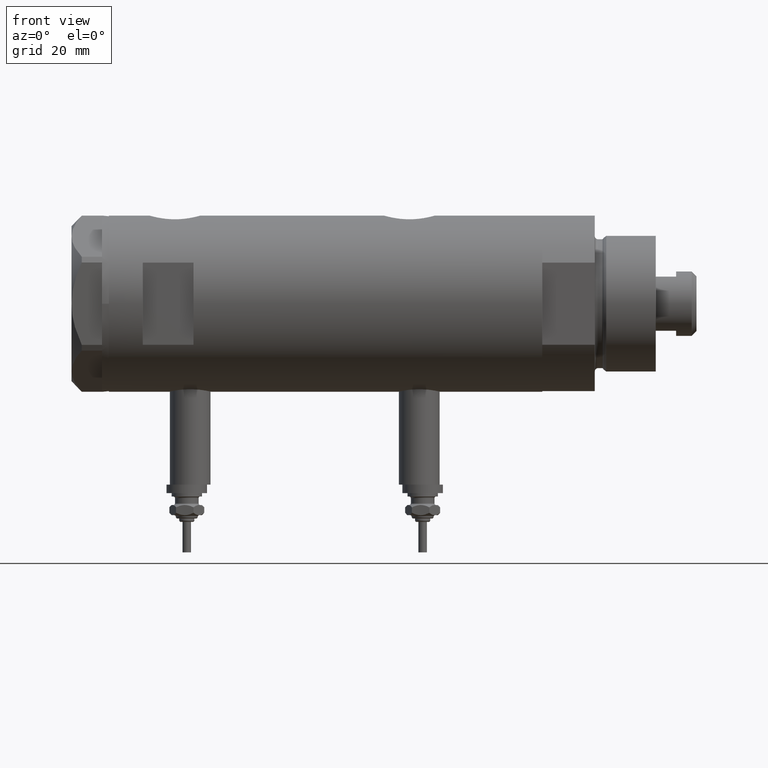
[diagram: clean part render]
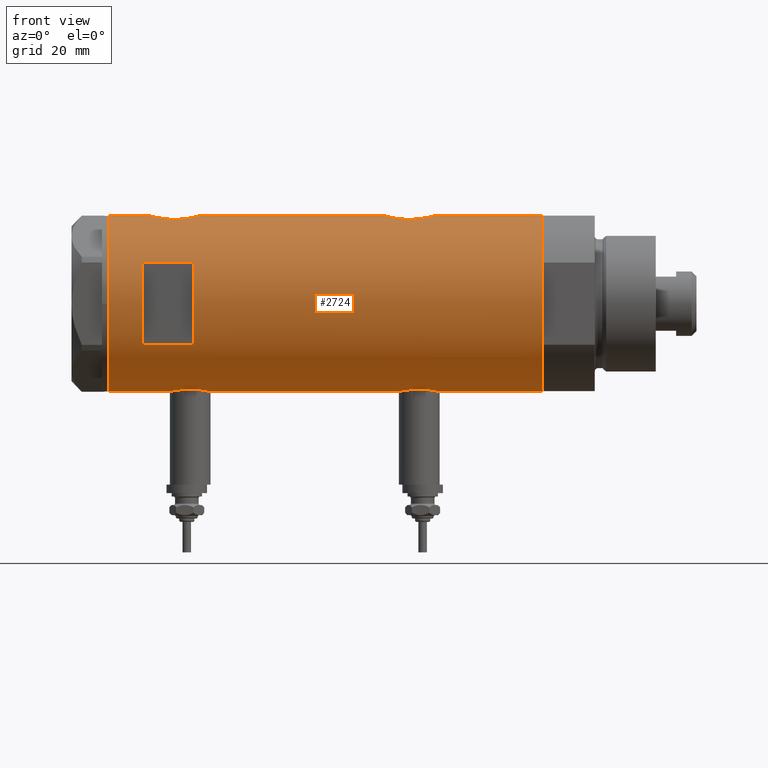
[diagram: same view with one face highlighted and labeled with its STEP entity id]
A machine part, front view. The second image highlights one B-rep face of the part: STEP entity #2724.
In plain terms, the highlighted cylindrical surface (partial cylindrical patch) has radius 26 mm, axis along (-1, -0, 0).
Its self-contained STEP definition (entity closure, byte-faithful):
#6 = CARTESIAN_POINT ( 'NONE',  ( 24.89475831528844552, -7.500067228253129770, 43.95662571746462532 ) ) ;
#11 = CARTESIAN_POINT ( 'NONE',  ( 25.72912156655465665, -3.765948295762493458, -31.25442975399221623 ) ) ;
#42 = CARTESIAN_POINT ( 'NONE',  ( 25.52567976009756379, -4.956266804246105551, 50.10019927459094191 ) ) ;
#134 = CARTESIAN_POINT ( 'NONE',  ( -25.59645788645698872, -4.565358797148519443, -23.37669470796522120 ) ) ;
#137 = CARTESIAN_POINT ( 'NONE',  ( 24.95200646071793571, -7.307522494171279526, 42.74392435812723079 ) ) ;
#138 = CARTESIAN_POINT ( 'NONE',  ( -25.67167563980648382, -4.129238867693851844, 35.24065943568895420 ) ) ;
#167 = CARTESIAN_POINT ( 'NONE',  ( -26.00000000000000355, -0.4086738135806045058, -33.90000000000001990 ) ) ;
#198 = CARTESIAN_POINT ( 'NONE',  ( -25.49846181844015192, -5.083495422175126066, -24.00822496617402635 ) ) ;
#257 = EDGE_CURVE ( 'NONE', #2544, #6095, #3784, .T. ) ;
#292 = DIRECTION ( 'NONE',  ( 0.000000000000000000, 0.000000000000000000, 1.000000000000000000 ) ) ;
#293 = B_SPLINE_CURVE_WITH_KNOTS ( 'NONE', 3,
 ( #2283, #893, #4735, #5158, #4213, #6153, #4771, #3329, #6220, #1798, #3273, #2230, #5734, #5289, #4642, #1376, #795, #5710, #402, #5194, #1352, #339, #6128, #861, #2343, #3714, #4297, #3245, #1826, #1770, #1883, #3804, #5770, #5649, #1287, #11, #1911, #2494, #2457, #3426, #2396, #4887 ),
 .UNSPECIFIED., .F., .F.,
 ( 4, 2, 2, 2, 2, 2, 2, 2, 2, 2, 2, 2, 2, 2, 2, 2, 2, 2, 2, 2, 4 ),
 ( 0.02357432247332886047, 0.02504731828495720264, 0.02652031409658554134, 0.02799330990821388351, 0.02946630571984222569, 0.03020280362565639504, 0.03093930153147056439, 0.03241229734309891003, 0.03388529315472725567, 0.03462179106054142502, 0.03535828896635559437, 0.03683128477798394695, 0.03756778268379813018, 0.03830428058961231341, 0.03977727640124066599, 0.04125027221286903245, 0.04198677011868321568, 0.04272326802449739891, 0.04419626383612575149, 0.04566925964775410407, 0.04714225545938246359 ),
 .UNSPECIFIED. ) ;
#317 = CARTESIAN_POINT ( 'NONE',  ( 26.00000000000000355, 0.000000000000000000, -63.95000000000000995 ) ) ;
#334 = ORIENTED_EDGE ( 'NONE', *, *, #3451, .F. ) ;
#339 = CARTESIAN_POINT ( 'NONE',  ( 24.89475831528845617, -7.500067228253131546, -25.24337428253536331 ) ) ;
#360 = CARTESIAN_POINT ( 'NONE',  ( -25.71926338401908652, -3.813768894920905872, 44.90572139833817289 ) ) ;
#392 = CARTESIAN_POINT ( 'NONE',  ( -25.28632996747171902, -6.050474653715411932, 41.56911870841535972 ) ) ;
#401 = CARTESIAN_POINT ( 'NONE',  ( 0.000000000000000000, 0.000000000000000000, -63.95000000000000995 ) ) ;
#402 = CARTESIAN_POINT ( 'NONE',  ( 24.91324908721446008, -7.438459228814659596, -23.75982500625810445 ) ) ;
#414 = CARTESIAN_POINT ( 'NONE',  ( -25.28680988956730857, -6.048472998962280300, 38.32372305811758650 ) ) ;
#426 = DIRECTION ( 'NONE',  ( 1.000000000000000000, 0.000000000000000000, 0.000000000000000000 ) ) ;
#435 = CARTESIAN_POINT ( 'NONE',  ( -12.12435565298214080, -23.00000000000000355, 53.94999999999999574 ) ) ;
#443 = VECTOR ( 'NONE', #999, 1000.000000000000000 ) ;
#523 = CARTESIAN_POINT ( 'NONE',  ( 25.00829008792691965, -7.115081037226468119, 46.87301003740818572 ) ) ;
#555 = CARTESIAN_POINT ( 'NONE',  ( 25.93098857934040424, -1.953835360821270184, 37.19226335297439334 ) ) ;
#573 = ORIENTED_EDGE ( 'NONE', *, *, #4363, .F. ) ;
#583 = CARTESIAN_POINT ( 'NONE',  ( -25.23758491649666169, -6.250144606721703688, -27.23988300428193554 ) ) ;
#585 = CARTESIAN_POINT ( 'NONE',  ( 25.59665538672497576, -4.580438224580679396, 50.40889127712392082 ) ) ;
#617 = CARTESIAN_POINT ( 'NONE',  ( -25.25025691038242215, -6.198787452305309920, -28.47441165395796503 ) ) ;
#622 = CARTESIAN_POINT ( 'NONE',  ( -25.87202607293666645, -2.583404329177992675, 34.25526333145487712 ) ) ;
#648 = DIRECTION ( 'NONE',  ( 0.000000000000000000, 0.000000000000000000, 1.000000000000000000 ) ) ;
#655 = CARTESIAN_POINT ( 'NONE',  ( -26.00000000000000355, 9.891741702313250758E-16, -21.40000000000000568 ) ) ;
#660 = CARTESIAN_POINT ( 'NONE',  ( -25.38744165544137132, -5.612847683295914436, 37.17012416761524918 ) ) ;
#691 = CARTESIAN_POINT ( 'NONE',  ( -25.64593536028935716, -4.278686337618962554, -23.08968397039123133 ) ) ;
#726 = CARTESIAN_POINT ( 'NONE',  ( -26.00000000000000355, 3.184077527325983904E-15, -33.90000000000001279 ) ) ;
#793 = VECTOR ( 'NONE', #5399, 1000.000000000000000 ) ;
#795 = CARTESIAN_POINT ( 'NONE',  ( 24.96672817551788270, -7.257586026187391681, -22.79615800278702409 ) ) ;
#838 = VERTEX_POINT ( 'NONE', #5767 ) ;
#846 = CARTESIAN_POINT ( 'NONE',  ( -25.59645788645698872, -4.565358797148513226, 44.22330529203480864 ) ) ;
#861 = CARTESIAN_POINT ( 'NONE',  ( 24.95200646071793926, -7.307522494171277749, -26.45607564187278982 ) ) ;
#877 = CARTESIAN_POINT ( 'NONE',  ( -25.74330903162726614, -3.648508829439214285, 45.02867714715799252 ) ) ;
#893 = CARTESIAN_POINT ( 'NONE',  ( 26.00000000000000355, -0.4910237949823167969, -17.25000000000000355 ) ) ;
#979 = CARTESIAN_POINT ( 'NONE',  ( 25.27534302296962565, -6.097250460344749712, 48.82409613097076573 ) ) ;
#999 = DIRECTION ( 'NONE',  ( 0.000000000000000000, 0.000000000000000000, 1.000000000000000000 ) ) ;
#1013 = CARTESIAN_POINT ( 'NONE',  ( 25.93085545515512180, -1.956676574435509686, 51.70727036830268020 ) ) ;
#1014 = CARTESIAN_POINT ( 'NONE',  ( -25.78943824387524231, -3.306687742228910487, 34.64245861216535616 ) ) ;
#1035 = VERTEX_POINT ( 'NONE', #4386 ) ;
#1046 = EDGE_CURVE ( 'NONE', #4701, #4359, #1752, .T. ) ;
#1070 = CARTESIAN_POINT ( 'NONE',  ( -25.52274351135604036, -4.960534548086201312, -23.84248254659267374 ) ) ;
#1073 = CARTESIAN_POINT ( 'NONE',  ( 24.89854802586676286, -7.487520416261735257, 44.94815683577904508 ) ) ;
#1077 = ORIENTED_EDGE ( 'NONE', *, *, #6127, .F. ) ;
#1091 = ORIENTED_EDGE ( 'NONE', *, *, #3012, .F. ) ;
#1103 = CARTESIAN_POINT ( 'NONE',  ( -25.24022290516699485, -6.239518219915428432, -28.06597215938432655 ) ) ;
#1106 = CARTESIAN_POINT ( 'NONE',  ( 25.78993643992928853, -3.329561377902404029, 51.18821560278738048 ) ) ;
#1140 = CARTESIAN_POINT ( 'NONE',  ( 26.00000000000001066, -0.4982617809740571002, 36.95000000000000995 ) ) ;
#1178 = CARTESIAN_POINT ( 'NONE',  ( -25.95218276861526618, -1.627663810194431626, -33.69850980387604267 ) ) ;
#1211 = CARTESIAN_POINT ( 'NONE',  ( -25.52190669608696183, -4.968444991210423822, -31.46341092192486855 ) ) ;
#1243 = CARTESIAN_POINT ( 'NONE',  ( -26.00000000000000355, 9.891741702313250758E-16, -21.40000000000000568 ) ) ;
#1259 = CARTESIAN_POINT ( 'NONE',  ( -26.00000000000000355, 3.184081677783118585E-15, 63.95000000000000995 ) ) ;
#1287 = CARTESIAN_POINT ( 'NONE',  ( 25.62983961939740496, -4.376509667782456425, -30.84558499042960378 ) ) ;
#1352 = CARTESIAN_POINT ( 'NONE',  ( 24.89478872726946079, -7.499966281647700406, -24.50178149365219227 ) ) ;
#1361 = CARTESIAN_POINT ( 'NONE',  ( 0.000000000000000000, 0.000000000000000000, -63.95000000000000995 ) ) ;
#1376 = CARTESIAN_POINT ( 'NONE',  ( 25.00829008792691965, -7.115081037226463678, -22.32698996259181001 ) ) ;
#1392 = VECTOR ( 'NONE', #292, 1000.000000000000000 ) ;
#1493 = CARTESIAN_POINT ( 'NONE',  ( 25.98599366666249466, -0.9828433289544075135, 51.90188401723472822 ) ) ;
#1509 = LINE ( 'NONE', #3445, #1986 ) ;
#1522 = CIRCLE ( 'NONE', #5682, 26.00000000000000355 ) ;
#1525 = CARTESIAN_POINT ( 'NONE',  ( 25.48871066912672489, -5.133852125086502127, 38.97709693256022945 ) ) ;
#1548 = CARTESIAN_POINT ( 'NONE',  ( -25.24765475072629783, -6.209883762780005867, -26.83321815644901065 ) ) ;
#1579 = EDGE_CURVE ( 'NONE', #6095, #2695, #1509, .T. ) ;
#1586 = VECTOR ( 'NONE', #648, 1000.000000000000000 ) ;
#1588 = CARTESIAN_POINT ( 'NONE',  ( 25.11342038069227200, -6.734617143597205313, 47.78770695790494472 ) ) ;
#1627 = CARTESIAN_POINT ( 'NONE',  ( 25.72873412774685775, -3.768477344985551536, 50.95287460144461988 ) ) ;
#1658 = CARTESIAN_POINT ( 'NONE',  ( -25.95206678899177533, -1.628763264760259677, -21.60199186669786542 ) ) ;
#1678 = EDGE_CURVE ( 'NONE', #3145, #1035, #4903, .T. ) ;
#1716 = DIRECTION ( 'NONE',  ( 0.000000000000000000, 0.000000000000000000, 1.000000000000000000 ) ) ;
#1752 = B_SPLINE_CURVE_WITH_KNOTS ( 'NONE', 3,
 ( #4857, #3422, #5916, #3029, #2454, #622, #2556, #5378, #1014, #4512, #138, #1972, #3897, #5857, #660, #4692, #414, #6300, #3702, #2836, #1816, #4759, #5700, #392, #3262, #3767, #5214, #2333, #6263, #1900, #846, #2772, #4724, #360, #877, #2303, #4260, #6209, #6235, #5242, #1842, #5724 ),
 .UNSPECIFIED., .F., .F.,
 ( 4, 2, 2, 2, 2, 2, 2, 2, 2, 2, 2, 2, 2, 2, 2, 2, 2, 2, 2, 2, 4 ),
 ( 0.01961238453869442941, 0.02083783025472767114, 0.02206327597076090941, 0.02267599882877753201, 0.02328872168679415461, 0.02451416740282739287, 0.02573961311886063114, 0.02696505883489386940, 0.02819050455092710766, 0.02880322740894371986, 0.02941595026696032858, 0.03064139598299354950, 0.03186684169902676694, 0.03309228741505998439, 0.03370501027307658271, 0.03431773313109318796, 0.03493045598910978627, 0.03554317884712639153, 0.03676862456315960898, 0.03799407027919282642, 0.03921951599522604387 ),
 .UNSPECIFIED. ) ;
#1770 = CARTESIAN_POINT ( 'NONE',  ( 25.30930190055639883, -5.959775463244125326, -29.32974043478030168 ) ) ;
#1798 = CARTESIAN_POINT ( 'NONE',  ( 25.41756773306324035, -5.475260495868973010, -19.61859126343050974 ) ) ;
#1816 = CARTESIAN_POINT ( 'NONE',  ( -25.23763877699556701, -6.249927116972441965, 39.74164472334533116 ) ) ;
#1826 = CARTESIAN_POINT ( 'NONE',  ( 25.17393786935996047, -6.507882790539420093, -28.51037333344033442 ) ) ;
#1842 = CARTESIAN_POINT ( 'NONE',  ( -25.99999999999998934, -0.4144764235405755670, 46.19999999999998863 ) ) ;
#1844 = DIRECTION ( 'NONE',  ( 0.000000000000000000, 0.000000000000000000, 1.000000000000000000 ) ) ;
#1883 = CARTESIAN_POINT ( 'NONE',  ( 25.38125492692911322, -5.649348210287286953, -29.70694334346396204 ) ) ;
#1896 = AXIS2_PLACEMENT_3D ( 'NONE', #1361, #5754, #3786 ) ;
#1900 = CARTESIAN_POINT ( 'NONE',  ( -25.57167894663061958, -4.701762988462087733, 44.07280450192416765 ) ) ;
#1911 = CARTESIAN_POINT ( 'NONE',  ( 25.78902964777116225, -3.336582972512953660, -31.48475840457738073 ) ) ;
#1956 = EDGE_CURVE ( 'NONE', #4811, #4112, #2792, .T. ) ;
#1971 = CARTESIAN_POINT ( 'NONE',  ( 24.89478872726946435, -7.499966281647702182, 44.69821850634780702 ) ) ;
#1972 = CARTESIAN_POINT ( 'NONE',  ( -25.57228991600092627, -4.705691472451699831, 35.81660309875347536 ) ) ;
#1976 = VERTEX_POINT ( 'NONE', #1259 ) ;
#1986 = VECTOR ( 'NONE', #5397, 1000.000000000000000 ) ;
#1997 = CARTESIAN_POINT ( 'NONE',  ( 25.11243836838846732, -6.738202653785822172, 41.12043350844842848 ) ) ;
#2031 = CARTESIAN_POINT ( 'NONE',  ( -25.57167894663062313, -4.701762988462092174, -23.52719549807583022 ) ) ;
#2060 = CARTESIAN_POINT ( 'NONE',  ( -25.87202607293667000, -2.583404329177994008, -33.34473666854514562 ) ) ;
#2062 = CARTESIAN_POINT ( 'NONE',  ( 25.31004928890825312, -5.952041021437453949, 49.01980599883506073 ) ) ;
#2088 = CARTESIAN_POINT ( 'NONE',  ( 12.12435565298214080, -23.00000000000000355, 53.94999999999999574 ) ) ;
#2091 = CARTESIAN_POINT ( 'NONE',  ( -25.99009752186833566, -0.8230863847107473541, -21.44082928593318016 ) ) ;
#2094 = CARTESIAN_POINT ( 'NONE',  ( 24.96970063328116751, -7.247045583599692975, 42.50280785145199758 ) ) ;
#2108 = ORIENTED_EDGE ( 'NONE', *, *, #1956, .T. ) ;
#2118 = CARTESIAN_POINT ( 'NONE',  ( -25.92425332714051223, -2.018894156999441858, -33.57896120675329854 ) ) ;
#2148 = CARTESIAN_POINT ( 'NONE',  ( -25.25769689814630325, -6.168504065326071206, -28.67646635296746283 ) ) ;
#2186 = ORIENTED_EDGE ( 'NONE', *, *, #4754, .F. ) ;
#2230 = CARTESIAN_POINT ( 'NONE',  ( 25.31004928890824957, -5.952041021437452173, -20.18019400116494211 ) ) ;
#2283 = CARTESIAN_POINT ( 'NONE',  ( 26.00000000000000355, -3.975025925197986111E-20, -17.25000000000000000 ) ) ;
#2301 = CARTESIAN_POINT ( 'NONE',  ( 26.00000000000000355, -3.975025925197986111E-20, 51.95000000000000284 ) ) ;
#2302 = DIRECTION ( 'NONE',  ( 1.000000000000000000, 0.000000000000000000, 0.000000000000000000 ) ) ;
#2303 = CARTESIAN_POINT ( 'NONE',  ( -25.81232680456767170, -3.137210741985118290, 45.37113657221578933 ) ) ;
#2333 = CARTESIAN_POINT ( 'NONE',  ( -25.49846181844015192, -5.083495422175122513, 43.59177503382596797 ) ) ;
#2343 = CARTESIAN_POINT ( 'NONE',  ( 24.96970063328116751, -7.247045583599691199, -26.69719214854802658 ) ) ;
#2384 = CIRCLE ( 'NONE', #3105, 26.00000000000000355 ) ;
#2396 = CARTESIAN_POINT ( 'NONE',  ( 26.00000000000000000, -0.4982617809740598758, -32.24999999999999289 ) ) ;
#2431 = VERTEX_POINT ( 'NONE', #2864 ) ;
#2452 = CARTESIAN_POINT ( 'NONE',  ( 25.03461301890608581, -7.019803056070501590, 41.79816816893102072 ) ) ;
#2454 = CARTESIAN_POINT ( 'NONE',  ( -25.92425332714050867, -2.018894156999440526, 34.02103879324670999 ) ) ;
#2457 = CARTESIAN_POINT ( 'NONE',  ( 25.93098857934040780, -1.953835360821264411, -32.00773664702560950 ) ) ;
#2490 = CARTESIAN_POINT ( 'NONE',  ( 25.62983961939739785, -4.376509667782453761, 38.35441500957040262 ) ) ;
#2494 = CARTESIAN_POINT ( 'NONE',  ( 25.88994451797512042, -2.432613607265603495, -31.86140968713203137 ) ) ;
#2515 = ORIENTED_EDGE ( 'NONE', *, *, #4379, .F. ) ;
#2523 = CARTESIAN_POINT ( 'NONE',  ( -25.28632996747171546, -6.050474653715413709, -26.03088129158463815 ) ) ;
#2524 = CARTESIAN_POINT ( 'NONE',  ( 24.92415241886515176, -7.401968919186680651, 45.68323537444814519 ) ) ;
#2544 = VERTEX_POINT ( 'NONE', #2088 ) ;
#2553 = CARTESIAN_POINT ( 'NONE',  ( -25.92364458890659762, -2.026637113504535570, -21.72369009308525278 ) ) ;
#2554 = EDGE_CURVE ( 'NONE', #6316, #4844, #3125, .T. ) ;
#2556 = CARTESIAN_POINT ( 'NONE',  ( -25.85288666140180780, -2.767917424206675747, 34.34257790010329359 ) ) ;
#2576 = ORIENTED_EDGE ( 'NONE', *, *, #1046, .F. ) ;
#2638 = VERTEX_POINT ( 'NONE', #1243 ) ;
#2695 = VERTEX_POINT ( 'NONE', #3819 ) ;
#2709 = CYLINDRICAL_SURFACE ( 'NONE', #1896, 26.00000000000000355 ) ;
#2716 = AXIS2_PLACEMENT_3D ( 'NONE', #5489, #3149, #5257 ) ;
#2724 = ADVANCED_FACE ( 'NONE', ( #3730, #4309 ), #2709, .T. ) ;
#2754 = EDGE_CURVE ( 'NONE', #2431, #838, #5782, .T. ) ;
#2772 = CARTESIAN_POINT ( 'NONE',  ( -25.64593536028936782, -4.278686337618957225, 44.51031602960880207 ) ) ;
#2792 = LINE ( 'NONE', #317, #5031 ) ;
#2814 = ORIENTED_EDGE ( 'NONE', *, *, #5197, .F. ) ;
#2836 = CARTESIAN_POINT ( 'NONE',  ( -25.24022290516698419, -6.239518219915426656, 39.53402784061567843 ) ) ;
#2838 = LINE ( 'NONE', #6264, #2927 ) ;
#2864 = CARTESIAN_POINT ( 'NONE',  ( -26.00000000000000355, 3.184081677783118585E-15, -63.95000000000000995 ) ) ;
#2918 = CIRCLE ( 'NONE', #2716, 26.00000000000000355 ) ;
#2927 = VECTOR ( 'NONE', #1844, 1000.000000000000000 ) ;
#2992 = CARTESIAN_POINT ( 'NONE',  ( -25.67063510297209561, -4.128418051804845668, -22.95317424728735389 ) ) ;
#2993 = CARTESIAN_POINT ( 'NONE',  ( 26.00000000000000711, -0.4910237949823162418, 51.95000000000000995 ) ) ;
#3012 = EDGE_CURVE ( 'NONE', #4811, #4844, #5731, .T. ) ;
#3027 = CARTESIAN_POINT ( 'NONE',  ( -25.81232680456767881, -3.137210741985117846, -22.22886342778422630 ) ) ;
#3029 = CARTESIAN_POINT ( 'NONE',  ( -25.95218276861526618, -1.627663810194429406, 33.90149019612396586 ) ) ;
#3062 = CARTESIAN_POINT ( 'NONE',  ( -25.57228991600092272, -4.705691472451700719, -31.78339690124654027 ) ) ;
#3093 = CARTESIAN_POINT ( 'NONE',  ( -25.99999999999999645, -0.4144764235405757891, -21.39999999999999858 ) ) ;
#3105 = AXIS2_PLACEMENT_3D ( 'NONE', #3331, #5291, #6222 ) ;
#3125 = LINE ( 'NONE', #3573, #1586 ) ;
#3130 = CARTESIAN_POINT ( 'NONE',  ( -25.23763877699557057, -6.249927116972442853, -27.85835527665468803 ) ) ;
#3145 = VERTEX_POINT ( 'NONE', #5278 ) ;
#3149 = DIRECTION ( 'NONE',  ( 0.000000000000000000, 0.000000000000000000, 1.000000000000000000 ) ) ;
#3245 = CARTESIAN_POINT ( 'NONE',  ( 25.11243836838846377, -6.738202653785828389, -28.07956649155160278 ) ) ;
#3262 = CARTESIAN_POINT ( 'NONE',  ( -25.31538696791480447, -5.929326713517952818, 41.96796632208099709 ) ) ;
#3273 = CARTESIAN_POINT ( 'NONE',  ( 25.38109653984943392, -5.641393955635657598, -19.80180907551248737 ) ) ;
#3286 = CARTESIAN_POINT ( 'NONE',  ( 26.00000000000000355, 2.393127611988522640E-16, 36.95000000000000284 ) ) ;
#3329 = CARTESIAN_POINT ( 'NONE',  ( 25.59665538672496865, -4.580438224580680284, -18.79110872287611400 ) ) ;
#3331 = CARTESIAN_POINT ( 'NONE',  ( 0.000000000000000000, 0.000000000000000000, 38.94999999999999574 ) ) ;
#3419 = CARTESIAN_POINT ( 'NONE',  ( 25.72912156655465665, -3.765948295762488129, 37.94557024600776174 ) ) ;
#3422 = CARTESIAN_POINT ( 'NONE',  ( -26.00000000000000000, -0.4086738135806028960, 33.70000000000000995 ) ) ;
#3426 = CARTESIAN_POINT ( 'NONE',  ( 25.98569226047905545, -0.9886551788957204101, -32.20082376600176843 ) ) ;
#3443 = EDGE_LOOP ( 'NONE', ( #3809, #4146, #6024, #2515, #5919, #1091, #2108, #573, #4282, #2576, #1077, #2186 ) ) ;
#3445 = CARTESIAN_POINT ( 'NONE',  ( -12.12435565298214080, -23.00000000000000355, -63.95000000000000995 ) ) ;
#3451 = EDGE_CURVE ( 'NONE', #2695, #5950, #2384, .T. ) ;
#3476 = CARTESIAN_POINT ( 'NONE',  ( -25.38744165544135711, -5.612847683295910883, -30.42987583238477001 ) ) ;
#3478 = CARTESIAN_POINT ( 'NONE',  ( 25.41756773306325812, -5.475260495868972122, 49.58140873656950731 ) ) ;
#3510 = CARTESIAN_POINT ( 'NONE',  ( -25.74330903162726614, -3.648508829439216061, -22.57132285284203732 ) ) ;
#3533 = LINE ( 'NONE', #5424, #793 ) ;
#3549 = CARTESIAN_POINT ( 'NONE',  ( -25.85288666140181135, -2.767917424206676635, -33.25742209989672205 ) ) ;
#3573 = CARTESIAN_POINT ( 'NONE',  ( 26.00000000000000355, 0.000000000000000000, -63.95000000000000995 ) ) ;
#3579 = CARTESIAN_POINT ( 'NONE',  ( -25.72076778631230454, -3.815670258243487822, -32.61687810531881127 ) ) ;
#3602 = LINE ( 'NONE', #5084, #3934 ) ;
#3608 = CARTESIAN_POINT ( 'NONE',  ( -25.28680988956730502, -6.048472998962281189, -29.27627694188244334 ) ) ;
#3612 = CARTESIAN_POINT ( 'NONE',  ( 25.98569226047905190, -0.9886551788957265163, 36.99917623399823441 ) ) ;
#3622 = B_SPLINE_CURVE_WITH_KNOTS ( 'NONE', 3,
 ( #726, #167, #5914, #1178, #2118, #2060, #3549, #5512, #4544, #3579, #4950, #3062, #1211, #4036, #3476, #5012, #3608, #2148, #617, #1103, #3130, #583, #1548, #2523, #4576, #5436, #4076, #198, #1070, #2031, #134, #691, #2992, #4479, #3510, #3027, #4982, #2553, #1658, #2091, #3093, #655 ),
 .UNSPECIFIED., .F., .F.,
 ( 4, 2, 2, 2, 2, 2, 2, 2, 2, 2, 2, 2, 2, 2, 2, 2, 2, 2, 2, 2, 4 ),
 ( 0.01961238453869442941, 0.02083783025472766420, 0.02206327597076090247, 0.02267599882877751813, 0.02328872168679413032, 0.02451416740282735818, 0.02573961311886058950, 0.02696505883489381389, 0.02819050455092704521, 0.02880322740894365394, 0.02941595026696026266, 0.03064139598299348011, 0.03186684169902669755, 0.03309228741505991500, 0.03370501027307653413, 0.03431773313109314633, 0.03493045598910975852, 0.03554317884712637071, 0.03676862456315959510, 0.03799407027919281948, 0.03921951599522604387 ),
 .UNSPECIFIED. ) ;
#3628 = ORIENTED_EDGE ( 'NONE', *, *, #1579, .F. ) ;
#3702 = CARTESIAN_POINT ( 'NONE',  ( -25.25025691038242570, -6.198787452305309920, 39.12558834604205771 ) ) ;
#3714 = CARTESIAN_POINT ( 'NONE',  ( 25.01107424167501136, -7.102941973849615565, -27.17062848662579100 ) ) ;
#3722 = DIRECTION ( 'NONE',  ( 0.000000000000000000, 0.000000000000000000, 1.000000000000000000 ) ) ;
#3730 = FACE_OUTER_BOUND ( 'NONE', #3443, .T. ) ;
#3767 = CARTESIAN_POINT ( 'NONE',  ( -25.38662204309617110, -5.616507264474310368, 42.72199377719325497 ) ) ;
#3784 = CIRCLE ( 'NONE', #5227, 26.00000000000000355 ) ;
#3786 = DIRECTION ( 'NONE',  ( 1.000000000000000000, 0.000000000000000000, 0.000000000000000000 ) ) ;
#3790 = DIRECTION ( 'NONE',  ( -0.000000000000000000, 0.000000000000000000, -1.000000000000000000 ) ) ;
#3802 = DIRECTION ( 'NONE',  ( 0.000000000000000000, 0.000000000000000000, 1.000000000000000000 ) ) ;
#3804 = CARTESIAN_POINT ( 'NONE',  ( 25.48871066912673200, -5.133852125086503015, -30.22290306743977695 ) ) ;
#3809 = ORIENTED_EDGE ( 'NONE', *, *, #2754, .F. ) ;
#3819 = CARTESIAN_POINT ( 'NONE',  ( -12.12435565298214080, -23.00000000000000355, 38.94999999999999574 ) ) ;
#3895 = CARTESIAN_POINT ( 'NONE',  ( 25.17393786935996403, -6.507882790539422757, 40.68962666655968974 ) ) ;
#3897 = CARTESIAN_POINT ( 'NONE',  ( -25.52190669608696183, -4.968444991210422934, 36.13658907807516130 ) ) ;
#3931 = CARTESIAN_POINT ( 'NONE',  ( 25.38125492692911322, -5.649348210287286953, 39.49305665653605502 ) ) ;
#3934 = VECTOR ( 'NONE', #1716, 1000.000000000000000 ) ;
#3968 = CARTESIAN_POINT ( 'NONE',  ( 24.96672817551788626, -7.257586026187397898, 46.40384199721297165 ) ) ;
#4036 = CARTESIAN_POINT ( 'NONE',  ( -25.42977453177915592, -5.420307583276851915, -30.78812271793362498 ) ) ;
#4039 = CARTESIAN_POINT ( 'NONE',  ( 25.59500516383206303, -4.575229401795788853, 38.50212244934581207 ) ) ;
#4076 = CARTESIAN_POINT ( 'NONE',  ( -25.42883439573800075, -5.424786127492330579, -24.51918542739092288 ) ) ;
#4112 = VERTEX_POINT ( 'NONE', #6107 ) ;
#4146 = ORIENTED_EDGE ( 'NONE', *, *, #5501, .T. ) ;
#4213 = CARTESIAN_POINT ( 'NONE',  ( 25.89059789403176381, -2.425642437452261380, -17.63622552757698969 ) ) ;
#4260 = CARTESIAN_POINT ( 'NONE',  ( -25.85385060263650203, -2.778671585188186910, 45.56314451304237423 ) ) ;
#4282 = ORIENTED_EDGE ( 'NONE', *, *, #5526, .F. ) ;
#4297 = CARTESIAN_POINT ( 'NONE',  ( 25.03461301890608581, -7.019803056070506919, -27.40183183106897147 ) ) ;
#4309 = FACE_BOUND ( 'NONE', #4764, .T. ) ;
#4359 = VERTEX_POINT ( 'NONE', #5322 ) ;
#4363 = EDGE_CURVE ( 'NONE', #1976, #4112, #2918, .T. ) ;
#4379 = EDGE_CURVE ( 'NONE', #6316, #1035, #293, .T. ) ;
#4383 = CARTESIAN_POINT ( 'NONE',  ( 25.38109653984944103, -5.641393955635660262, 49.39819092448751547 ) ) ;
#4386 = CARTESIAN_POINT ( 'NONE',  ( 26.00000000000000355, 6.604469597105595072E-16, -32.25000000000000000 ) ) ;
#4414 = CARTESIAN_POINT ( 'NONE',  ( 25.01107424167500071, -7.102941973849614676, 42.02937151337422250 ) ) ;
#4447 = CARTESIAN_POINT ( 'NONE',  ( 25.30930190055639883, -5.959775463244126215, 39.87025956521971892 ) ) ;
#4479 = CARTESIAN_POINT ( 'NONE',  ( -25.71926338401910073, -3.813768894920913421, -22.69427860166186051 ) ) ;
#4512 = CARTESIAN_POINT ( 'NONE',  ( -25.72076778631231164, -3.815670258243487378, 34.98312189468123279 ) ) ;
#4544 = CARTESIAN_POINT ( 'NONE',  ( -25.78943824387523875, -3.306687742228911819, -32.95754138783468079 ) ) ;
#4576 = CARTESIAN_POINT ( 'NONE',  ( -25.31538696791481158, -5.929326713517954595, -25.63203367791900433 ) ) ;
#4642 = CARTESIAN_POINT ( 'NONE',  ( 25.11342038069227200, -6.734617143597201760, -21.41229304209504747 ) ) ;
#4656 = CARTESIAN_POINT ( 'NONE',  ( -26.00000000000000355, 3.184081677783118585E-15, -63.95000000000000995 ) ) ;
#4692 = CARTESIAN_POINT ( 'NONE',  ( -25.31551596256916525, -5.928819821281959612, 37.92988508095918121 ) ) ;
#4701 = VERTEX_POINT ( 'NONE', #5341 ) ;
#4724 = CARTESIAN_POINT ( 'NONE',  ( -25.67063510297210271, -4.128418051804841227, 44.64682575271267240 ) ) ;
#4735 = CARTESIAN_POINT ( 'NONE',  ( 25.98599366666248756, -0.9828433289544070695, -17.29811598276525686 ) ) ;
#4754 = EDGE_CURVE ( 'NONE', #838, #2638, #3622, .T. ) ;
#4759 = CARTESIAN_POINT ( 'NONE',  ( -25.23758491649666169, -6.250144606721704577, 40.36011699571809430 ) ) ;
#4764 = EDGE_LOOP ( 'NONE', ( #334, #3628, #5713, #2814 ) ) ;
#4771 = CARTESIAN_POINT ( 'NONE',  ( 25.72873412774686486, -3.768477344985556421, -18.24712539855537585 ) ) ;
#4810 = CARTESIAN_POINT ( 'NONE',  ( 26.00000000000000355, 0.000000000000000000, -63.95000000000000995 ) ) ;
#4811 = VERTEX_POINT ( 'NONE', #2301 ) ;
#4844 = VERTEX_POINT ( 'NONE', #3286 ) ;
#4856 = CARTESIAN_POINT ( 'NONE',  ( 25.17510548814052740, -6.503212750695464450, 48.21761787815347589 ) ) ;
#4857 = CARTESIAN_POINT ( 'NONE',  ( -26.00000000000000355, 3.184077527313362130E-15, 33.70000000000000995 ) ) ;
#4884 = CARTESIAN_POINT ( 'NONE',  ( 25.89059789403177447, -2.425642437452259603, 51.56377447242302736 ) ) ;
#4887 = CARTESIAN_POINT ( 'NONE',  ( 26.00000000000000355, 6.604469597105595072E-16, -32.25000000000000000 ) ) ;
#4903 = LINE ( 'NONE', #4810, #443 ) ;
#4920 = CARTESIAN_POINT ( 'NONE',  ( 25.88994451797512042, -2.432613607265590172, 37.33859031286797858 ) ) ;
#4950 = CARTESIAN_POINT ( 'NONE',  ( -25.67167563980648382, -4.129238867693853621, -32.35934056431106143 ) ) ;
#4952 = CARTESIAN_POINT ( 'NONE',  ( 24.90947356773250121, -7.451722770779339200, 43.46809158171848964 ) ) ;
#4982 = CARTESIAN_POINT ( 'NONE',  ( -25.85385060263650558, -2.778671585188185134, -22.03685548695763430 ) ) ;
#5012 = CARTESIAN_POINT ( 'NONE',  ( -25.31551596256915815, -5.928819821281960500, -29.67011491904085929 ) ) ;
#5031 = VECTOR ( 'NONE', #3722, 1000.000000000000000 ) ;
#5084 = CARTESIAN_POINT ( 'NONE',  ( -26.00000000000000355, 3.184081677783118585E-15, -63.95000000000000995 ) ) ;
#5158 = CARTESIAN_POINT ( 'NONE',  ( 25.93085545515511470, -1.956676574435509242, -17.49272963169731909 ) ) ;
#5194 = CARTESIAN_POINT ( 'NONE',  ( 24.89854802586675930, -7.487520416261735257, -24.25184316422095776 ) ) ;
#5197 = EDGE_CURVE ( 'NONE', #5950, #2544, #2838, .T. ) ;
#5214 = CARTESIAN_POINT ( 'NONE',  ( -25.42883439573800430, -5.424786127492328802, 43.08081457260909275 ) ) ;
#5227 = AXIS2_PLACEMENT_3D ( 'NONE', #6172, #3790, #2302 ) ;
#5242 = CARTESIAN_POINT ( 'NONE',  ( -25.99009752186832500, -0.8230863847107482423, 46.15917071406681060 ) ) ;
#5257 = DIRECTION ( 'NONE',  ( 1.000000000000000000, 0.000000000000000000, 0.000000000000000000 ) ) ;
#5278 = CARTESIAN_POINT ( 'NONE',  ( 26.00000000000000355, 0.000000000000000000, -63.95000000000000995 ) ) ;
#5289 = CARTESIAN_POINT ( 'NONE',  ( 25.17510548814052740, -6.503212750695460009, -20.98238212184651275 ) ) ;
#5291 = DIRECTION ( 'NONE',  ( 0.000000000000000000, 0.000000000000000000, 1.000000000000000000 ) ) ;
#5322 = CARTESIAN_POINT ( 'NONE',  ( -26.00000000000000355, -2.813058302341337106E-16, 46.20000000000000284 ) ) ;
#5341 = CARTESIAN_POINT ( 'NONE',  ( -26.00000000000000355, 3.184077527313362130E-15, 33.70000000000000995 ) ) ;
#5378 = CARTESIAN_POINT ( 'NONE',  ( -25.81160981652327280, -3.129523010631799718, 34.53607026277927616 ) ) ;
#5397 = DIRECTION ( 'NONE',  ( -0.000000000000000000, -0.000000000000000000, -1.000000000000000000 ) ) ;
#5399 = DIRECTION ( 'NONE',  ( 0.000000000000000000, 0.000000000000000000, 1.000000000000000000 ) ) ;
#5410 = CARTESIAN_POINT ( 'NONE',  ( 24.91324908721446008, -7.438459228814657820, 45.44017499374189839 ) ) ;
#5424 = CARTESIAN_POINT ( 'NONE',  ( -26.00000000000000355, 3.184081677783118585E-15, -63.95000000000000995 ) ) ;
#5436 = CARTESIAN_POINT ( 'NONE',  ( -25.38662204309616754, -5.616507264474312144, -24.87800622280676777 ) ) ;
#5472 = CARTESIAN_POINT ( 'NONE',  ( 26.00000000000000355, -3.975025925197986111E-20, 51.95000000000000284 ) ) ;
#5489 = CARTESIAN_POINT ( 'NONE',  ( 0.000000000000000000, 0.000000000000000000, 63.95000000000000995 ) ) ;
#5501 = EDGE_CURVE ( 'NONE', #2431, #3145, #1522, .T. ) ;
#5512 = CARTESIAN_POINT ( 'NONE',  ( -25.81160981652327280, -3.129523010631799274, -33.06392973722074657 ) ) ;
#5514 = CARTESIAN_POINT ( 'NONE',  ( 26.00000000000000355, 2.393127611988522640E-16, 36.95000000000000284 ) ) ;
#5526 = EDGE_CURVE ( 'NONE', #4359, #1976, #3602, .T. ) ;
#5649 = CARTESIAN_POINT ( 'NONE',  ( 25.59500516383205593, -4.575229401795793294, -30.69787755065420143 ) ) ;
#5682 = AXIS2_PLACEMENT_3D ( 'NONE', #401, #3802, #426 ) ;
#5700 = CARTESIAN_POINT ( 'NONE',  ( -25.24765475072630139, -6.209883762780005867, 40.76678184355099432 ) ) ;
#5710 = CARTESIAN_POINT ( 'NONE',  ( 24.92415241886516242, -7.401968919186685092, -23.51676462555185765 ) ) ;
#5713 = ORIENTED_EDGE ( 'NONE', *, *, #257, .F. ) ;
#5724 = CARTESIAN_POINT ( 'NONE',  ( -26.00000000000000355, -2.813058302341337106E-16, 46.20000000000000284 ) ) ;
#5731 = B_SPLINE_CURVE_WITH_KNOTS ( 'NONE', 3,
 ( #5472, #2993, #1493, #1013, #4884, #1106, #1627, #585, #42, #3478, #4383, #2062, #979, #4856, #1588, #523, #3968, #2524, #5410, #1073, #1971, #6, #4952, #137, #2094, #4414, #2452, #1997, #3895, #4447, #3931, #1525, #5855, #4039, #2490, #3419, #5980, #4920, #555, #3612, #1140, #5514 ),
 .UNSPECIFIED., .F., .F.,
 ( 4, 2, 2, 2, 2, 2, 2, 2, 2, 2, 2, 2, 2, 2, 2, 2, 2, 2, 2, 2, 4 ),
 ( 0.02357432247332888128, 0.02504731828495723733, 0.02652031409658558991, 0.02799330990821394596, 0.02946630571984230201, 0.03020280362565647136, 0.03093930153147064072, 0.03241229734309895860, 0.03388529315472728343, 0.03462179106054144584, 0.03535828896635560825, 0.03683128477798394695, 0.03756778268379813018, 0.03830428058961230647, 0.03977727640124069375, 0.04125027221286907408, 0.04198677011868326425, 0.04272326802449744054, 0.04419626383612580006, 0.04566925964775415958, 0.04714225545938251216 ),
 .UNSPECIFIED. ) ;
#5734 = CARTESIAN_POINT ( 'NONE',  ( 25.27534302296961144, -6.097250460344744383, -20.37590386902925843 ) ) ;
#5754 = DIRECTION ( 'NONE',  ( 0.000000000000000000, 0.000000000000000000, 1.000000000000000000 ) ) ;
#5767 = CARTESIAN_POINT ( 'NONE',  ( -26.00000000000000355, 3.184077527325983904E-15, -33.90000000000001279 ) ) ;
#5770 = CARTESIAN_POINT ( 'NONE',  ( 25.52449676677458967, -4.953491517965880497, -30.38674491334075256 ) ) ;
#5782 = LINE ( 'NONE', #4656, #1392 ) ;
#5855 = CARTESIAN_POINT ( 'NONE',  ( 25.52449676677459323, -4.953491517965875168, 38.81325508665924673 ) ) ;
#5857 = CARTESIAN_POINT ( 'NONE',  ( -25.42977453177915947, -5.420307583276853691, 36.81187728206637644 ) ) ;
#5914 = CARTESIAN_POINT ( 'NONE',  ( -25.99036913299956097, -0.8159609457881449313, -33.86031143031890878 ) ) ;
#5916 = CARTESIAN_POINT ( 'NONE',  ( -25.99036913299955742, -0.8159609457881432659, 33.73968856968108554 ) ) ;
#5919 = ORIENTED_EDGE ( 'NONE', *, *, #2554, .T. ) ;
#5950 = VERTEX_POINT ( 'NONE', #6116 ) ;
#5980 = CARTESIAN_POINT ( 'NONE',  ( 25.78902964777116225, -3.336582972512940781, 37.71524159542261145 ) ) ;
#6019 = CARTESIAN_POINT ( 'NONE',  ( 26.00000000000000355, -3.975025925197986111E-20, -17.25000000000000000 ) ) ;
#6024 = ORIENTED_EDGE ( 'NONE', *, *, #1678, .T. ) ;
#6095 = VERTEX_POINT ( 'NONE', #435 ) ;
#6107 = CARTESIAN_POINT ( 'NONE',  ( 26.00000000000000355, 0.000000000000000000, 63.95000000000000995 ) ) ;
#6116 = CARTESIAN_POINT ( 'NONE',  ( 12.12435565298214080, -23.00000000000000355, 38.94999999999999574 ) ) ;
#6127 = EDGE_CURVE ( 'NONE', #2638, #4701, #3533, .T. ) ;
#6128 = CARTESIAN_POINT ( 'NONE',  ( 24.90947356773249766, -7.451722770779339200, -25.73190841828152742 ) ) ;
#6153 = CARTESIAN_POINT ( 'NONE',  ( 25.78993643992928853, -3.329561377902408470, -18.01178439721262592 ) ) ;
#6172 = CARTESIAN_POINT ( 'NONE',  ( 0.000000000000000000, 0.000000000000000000, 53.94999999999999574 ) ) ;
#6209 = CARTESIAN_POINT ( 'NONE',  ( -25.92364458890658696, -2.026637113504536458, 45.87630990691474153 ) ) ;
#6220 = CARTESIAN_POINT ( 'NONE',  ( 25.52567976009756379, -4.956266804246105551, -19.09980072540905383 ) ) ;
#6222 = DIRECTION ( 'NONE',  ( -1.000000000000000000, 0.000000000000000000, 0.000000000000000000 ) ) ;
#6235 = CARTESIAN_POINT ( 'NONE',  ( -25.95206678899177888, -1.628763264760260565, 45.99800813330215021 ) ) ;
#6263 = CARTESIAN_POINT ( 'NONE',  ( -25.52274351135605102, -4.960534548086199536, 43.75751745340735255 ) ) ;
#6264 = CARTESIAN_POINT ( 'NONE',  ( 12.12435565298214080, -23.00000000000000355, -63.95000000000000995 ) ) ;
#6300 = CARTESIAN_POINT ( 'NONE',  ( -25.25769689814630325, -6.168504065326071206, 38.92353364703254925 ) ) ;
#6316 = VERTEX_POINT ( 'NONE', #6019 ) ;